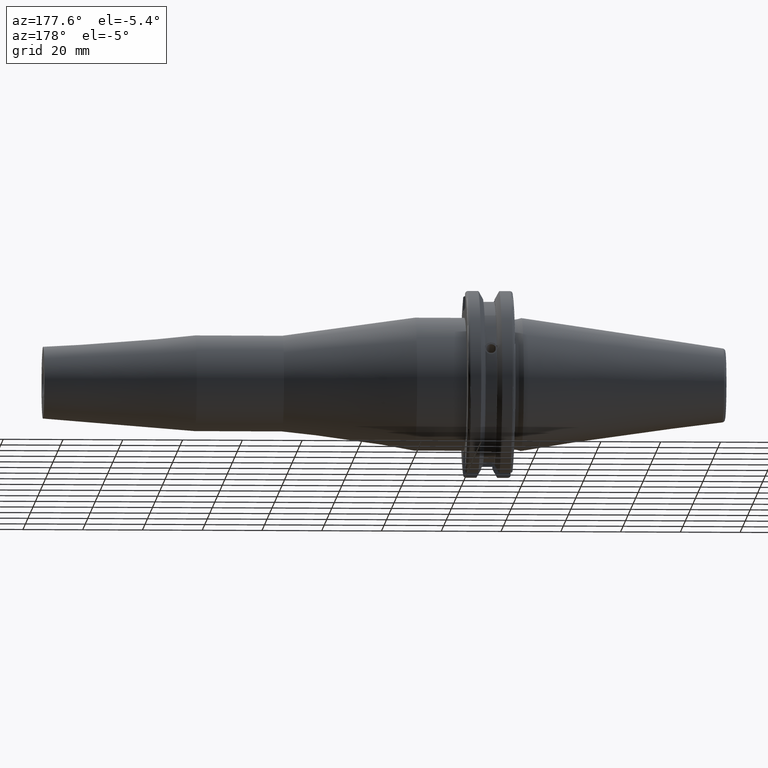
[diagram: clean part render]
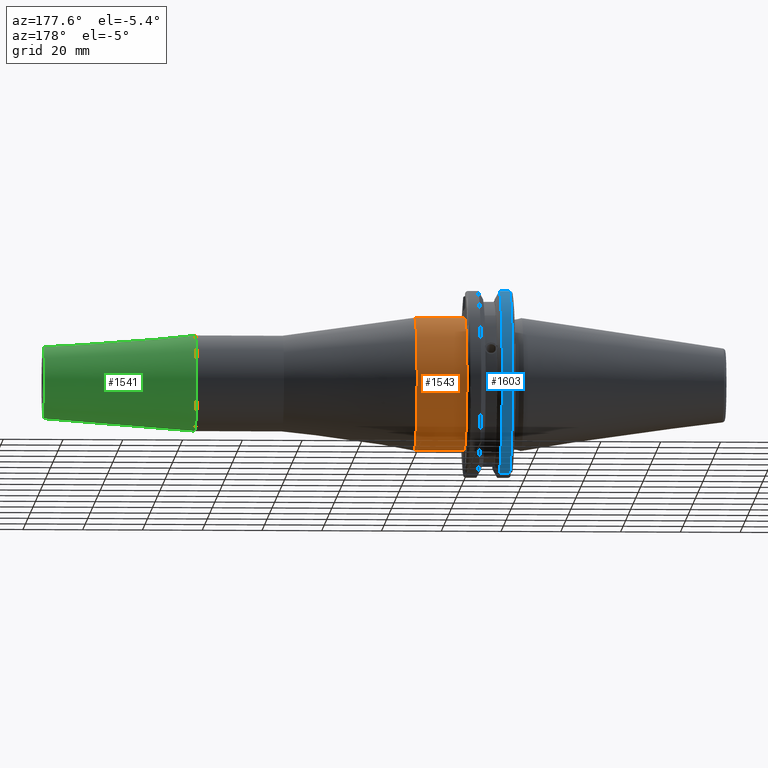
[diagram: same view with three faces highlighted in distinct colors, each labeled with its STEP entity id]
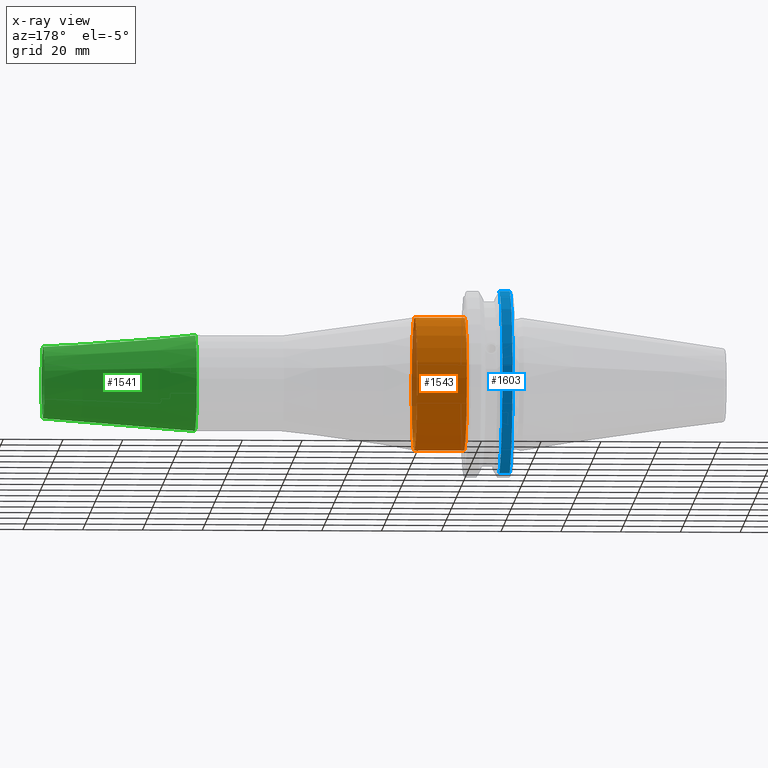
[diagram: x-ray of the same camera — body ghosted, the three highlighted faces saturated]
A machine part, auxiliary view with three faces highlighted in distinct colors.
The next image is the same camera in x-ray (body ghosted, the three faces saturated) — at least one of them is partly hidden behind the body in this view.
Their STEP definitions:

[orange] entity #1543 — the highlighted cylindrical surface (bore or boss wall) has radius 22.225 mm, axis along (1, 0, 0).
#149=CYLINDRICAL_SURFACE('',#1674,22.225);
#189=FACE_OUTER_BOUND('',#287,.T.);
#287=EDGE_LOOP('',(#1098,#1099,#1100,#1101));
#386=LINE('',#2434,#486);
#486=VECTOR('',#1906,22.225);
#589=CIRCLE('',#1675,22.225);
#590=CIRCLE('',#1676,22.225);
#668=VERTEX_POINT('',#2431);
#669=VERTEX_POINT('',#2433);
#834=EDGE_CURVE('',#668,#668,#589,.T.);
#835=EDGE_CURVE('',#668,#669,#386,.T.);
#836=EDGE_CURVE('',#669,#669,#590,.T.);
#1098=ORIENTED_EDGE('',*,*,#834,.F.);
#1099=ORIENTED_EDGE('',*,*,#835,.T.);
#1100=ORIENTED_EDGE('',*,*,#836,.F.);
#1101=ORIENTED_EDGE('',*,*,#835,.F.);
#1543=ADVANCED_FACE('',(#189),#149,.T.);
#1674=AXIS2_PLACEMENT_3D('',#2430,#1902,#1903);
#1675=AXIS2_PLACEMENT_3D('',#2432,#1904,#1905);
#1676=AXIS2_PLACEMENT_3D('',#2435,#1907,#1908);
#1902=DIRECTION('center_axis',(1.,0.,0.));
#1903=DIRECTION('ref_axis',(0.,1.,0.));
#1904=DIRECTION('center_axis',(1.,0.,0.));
#1905=DIRECTION('ref_axis',(0.,0.,-1.));
#1906=DIRECTION('',(-1.,0.,0.));
#1907=DIRECTION('center_axis',(-1.,0.,0.));
#1908=DIRECTION('ref_axis',(0.,1.,0.));
#2430=CARTESIAN_POINT('Origin',(27.3784117390792,0.,0.));
#2431=CARTESIAN_POINT('',(35.7068234781583,-22.225,-2.72177751110499E-15));
#2432=CARTESIAN_POINT('Origin',(35.7068234781583,0.,0.));
#2433=CARTESIAN_POINT('',(19.05,-22.225,-2.72177751110499E-15));
#2434=CARTESIAN_POINT('',(27.3784117390792,-22.225,-2.72177751110499E-15));
#2435=CARTESIAN_POINT('Origin',(19.05,0.,0.));

[blue] entity #1603 — the highlighted cylindrical surface (partial cylindrical patch) has radius 31.75 mm, axis along (1, 0, 0).
#169=CYLINDRICAL_SURFACE('',#1798,31.75);
#249=FACE_OUTER_BOUND('',#356,.T.);
#356=EDGE_LOOP('',(#1441,#1442,#1443,#1444));
#453=LINE('',#2989,#553);
#468=LINE('',#3042,#568);
#553=VECTOR('',#2173,10.);
#568=VECTOR('',#2232,10.);
#607=CIRCLE('',#1731,31.75);
#627=CIRCLE('',#1774,31.75);
#722=VERTEX_POINT('',#2699);
#723=VERTEX_POINT('',#2703);
#784=VERTEX_POINT('',#2963);
#785=VERTEX_POINT('',#2972);
#910=EDGE_CURVE('',#722,#723,#607,.T.);
#995=EDGE_CURVE('',#784,#785,#627,.T.);
#998=EDGE_CURVE('',#785,#722,#453,.T.);
#1022=EDGE_CURVE('',#723,#784,#468,.T.);
#1441=ORIENTED_EDGE('',*,*,#995,.F.);
#1442=ORIENTED_EDGE('',*,*,#1022,.F.);
#1443=ORIENTED_EDGE('',*,*,#910,.F.);
#1444=ORIENTED_EDGE('',*,*,#998,.F.);
#1603=ADVANCED_FACE('',(#249),#169,.T.);
#1731=AXIS2_PLACEMENT_3D('',#2704,#2041,#2042);
#1774=AXIS2_PLACEMENT_3D('',#2973,#2169,#2170);
#1798=AXIS2_PLACEMENT_3D('',#3043,#2233,#2234);
#2041=DIRECTION('center_axis',(1.,0.,0.));
#2042=DIRECTION('ref_axis',(0.,0.,-1.));
#2169=DIRECTION('center_axis',(-1.,0.,0.));
#2170=DIRECTION('ref_axis',(0.,1.,1.60812264967664E-16));
#2173=DIRECTION('',(1.,0.,0.));
#2232=DIRECTION('',(-1.,0.,0.));
#2233=DIRECTION('center_axis',(1.,0.,0.));
#2234=DIRECTION('ref_axis',(0.,1.,0.));
#2699=CARTESIAN_POINT('',(7.60793323092436,8.67204822802685,-30.5427254764662));
#2703=CARTESIAN_POINT('',(7.60793323092436,8.67204822802685,30.5427254764662));
#2704=CARTESIAN_POINT('Origin',(7.60793323092436,0.,0.));
#2963=CARTESIAN_POINT('',(4.175,8.67204822802685,30.5427254764662));
#2972=CARTESIAN_POINT('',(4.175,8.67204822802685,-30.5427254764662));
#2973=CARTESIAN_POINT('Origin',(4.175,0.,0.));
#2989=CARTESIAN_POINT('',(5.39146661546218,8.67204822802685,-30.5427254764662));
#3042=CARTESIAN_POINT('',(5.39146661546218,8.67204822802685,30.5427254764662));
#3043=CARTESIAN_POINT('Origin',(5.39146661546218,0.,0.));

[green] entity #1541 — the highlighted conical surface has half-angle 4.5 deg.
#187=FACE_OUTER_BOUND('',#282,.T.);
#282=EDGE_LOOP('',(#1090,#1091,#1092,#1093));
#385=LINE('',#2427,#485);
#485=VECTOR('',#1897,14.);
#587=CIRCLE('',#1671,12.);
#588=CIRCLE('',#1672,16.);
#666=VERTEX_POINT('',#2424);
#667=VERTEX_POINT('',#2426);
#831=EDGE_CURVE('',#666,#666,#587,.T.);
#832=EDGE_CURVE('',#666,#667,#385,.T.);
#833=EDGE_CURVE('',#667,#667,#588,.T.);
#1090=ORIENTED_EDGE('',*,*,#831,.F.);
#1091=ORIENTED_EDGE('',*,*,#832,.T.);
#1092=ORIENTED_EDGE('',*,*,#833,.T.);
#1093=ORIENTED_EDGE('',*,*,#832,.F.);
#1516=CONICAL_SURFACE('',#1670,14.,0.0785398163397452);
#1541=ADVANCED_FACE('',(#187),#1516,.T.);
#1670=AXIS2_PLACEMENT_3D('',#2423,#1893,#1894);
#1671=AXIS2_PLACEMENT_3D('',#2425,#1895,#1896);
#1672=AXIS2_PLACEMENT_3D('',#2428,#1898,#1899);
#1893=DIRECTION('center_axis',(-1.,0.,0.));
#1894=DIRECTION('ref_axis',(0.,1.,0.));
#1895=DIRECTION('center_axis',(1.,0.,0.));
#1896=DIRECTION('ref_axis',(0.,0.,-1.));
#1897=DIRECTION('',(-0.996917333733128,-0.0784590957278453,-9.60846804471016E-18));
#1898=DIRECTION('center_axis',(1.,0.,0.));
#1899=DIRECTION('ref_axis',(0.,0.,-1.));
#2423=CARTESIAN_POINT('Origin',(134.587590527651,0.,0.));
#2424=CARTESIAN_POINT('',(160.,-12.,-1.46957615897682E-15));
#2425=CARTESIAN_POINT('Origin',(160.,0.,0.));
#2426=CARTESIAN_POINT('',(109.175181055301,-16.,-1.95943487863577E-15));
#2427=CARTESIAN_POINT('',(134.587590527651,-14.,-1.71450551880629E-15));
#2428=CARTESIAN_POINT('Origin',(109.175181055301,0.,0.));